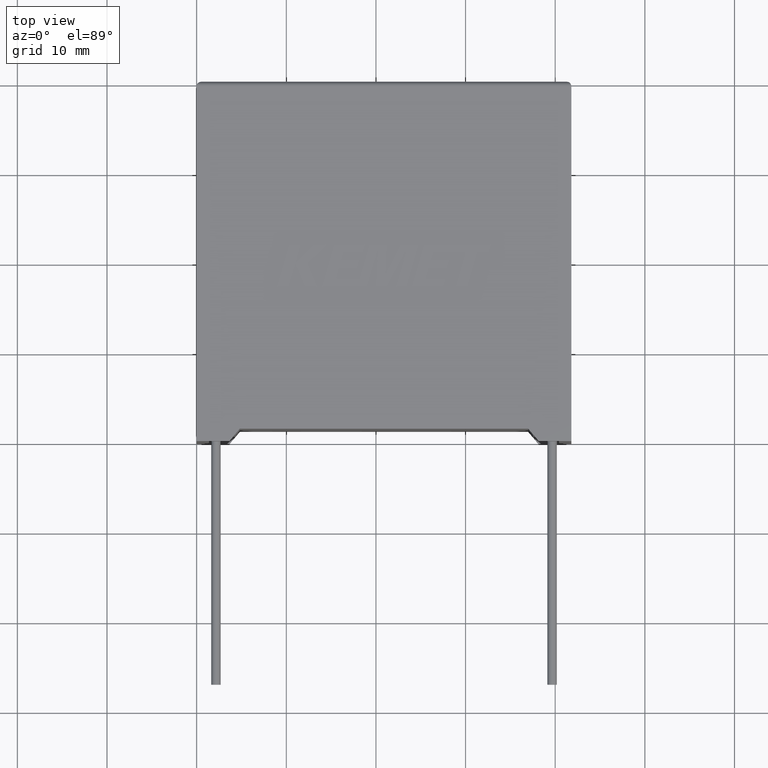
[diagram: clean part render]
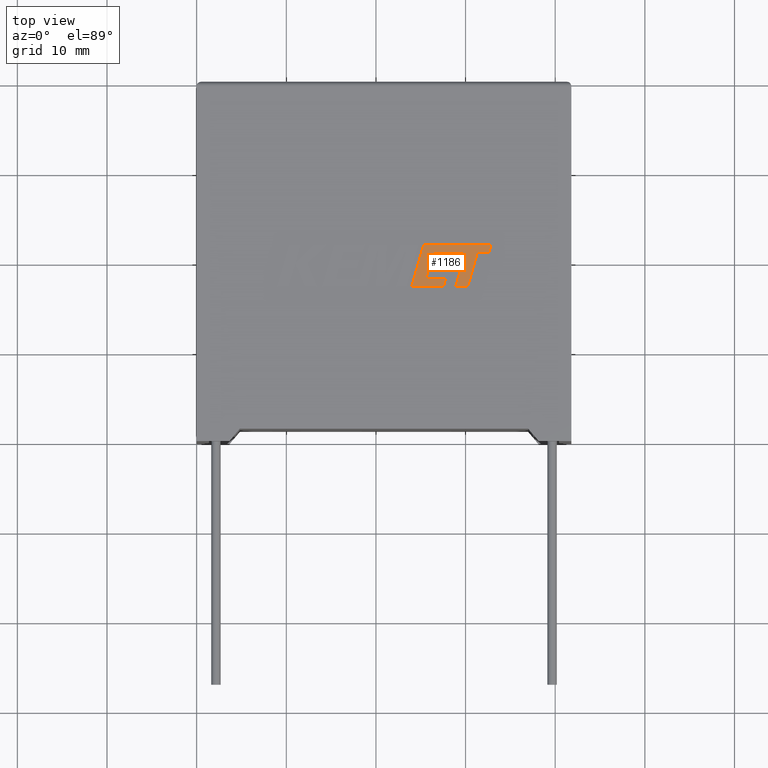
[diagram: same view with one face highlighted and labeled with its STEP entity id]
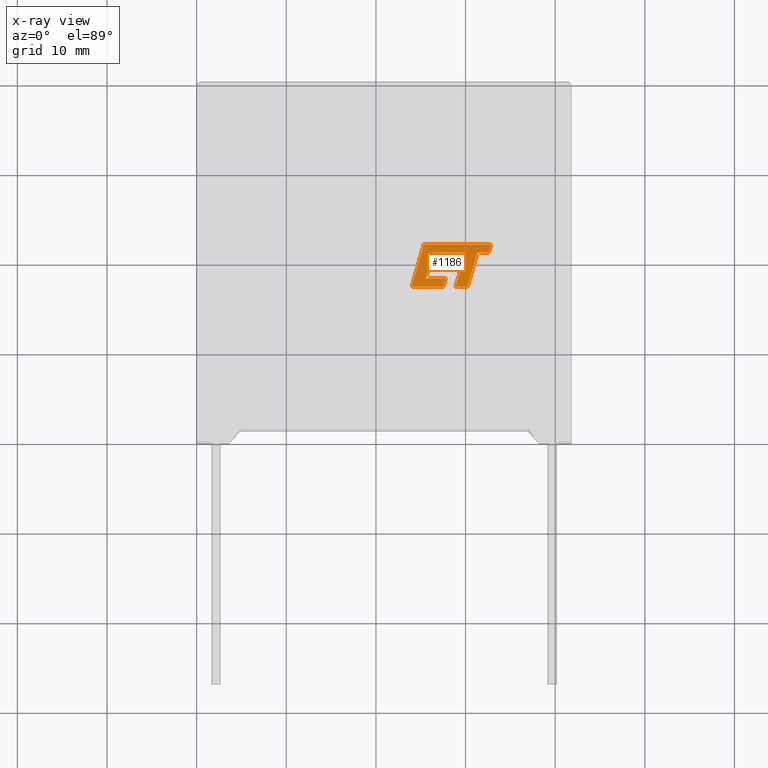
[diagram: x-ray of the same camera — body ghosted, the highlighted face saturated]
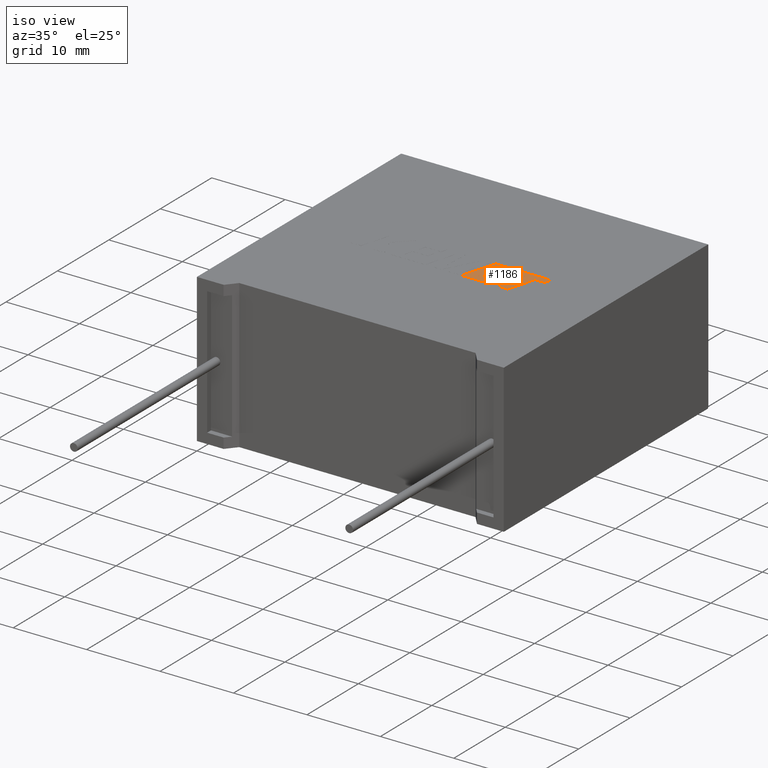
[diagram: same view with one face highlighted and labeled with its STEP entity id]
A machine part, top view. The second image highlights one B-rep face of the part: STEP entity #1186.
The next image is the same camera in x-ray: the body ghosted, the highlighted face saturated — about 0% of this face is hidden behind the body in this view.
A second angle (iso view) of the same face is appended — the face is thin or edge-on in the first view.
In plain terms, the highlighted planar face has unit normal (0, 0, 1).
Its self-contained STEP definition (entity closure, byte-faithful):
#13 = ORIENTED_EDGE ( 'NONE', *, *, #955, .T. ) ;
#33 = LINE ( 'NONE', #586, #2562 ) ;
#76 = DIRECTION ( 'NONE',  ( 0.2729786930694848013, 0.9620200793798827643, 0.000000000000000000 ) ) ;
#98 = LINE ( 'NONE', #1986, #616 ) ;
#99 = LINE ( 'NONE', #2693, #723 ) ;
#100 = CARTESIAN_POINT ( 'NONE',  ( 27.78357728176904118, 18.14594487982692428, 20.20500000000000185 ) ) ;
#101 = DIRECTION ( 'NONE',  ( -1.000000000000000000, 0.000000000000000000, 0.000000000000000000 ) ) ;
#136 = VERTEX_POINT ( 'NONE', #1414 ) ;
#146 = LINE ( 'NONE', #1098, #516 ) ;
#148 = CARTESIAN_POINT ( 'NONE',  ( 27.78357728176904118, 18.14594487982692428, 20.20500000000000185 ) ) ;
#198 = VERTEX_POINT ( 'NONE', #2773 ) ;
#200 = CARTESIAN_POINT ( 'NONE',  ( 26.15874169447065967, 20.17479702603509395, 20.20500000000000185 ) ) ;
#204 = DIRECTION ( 'NONE',  ( 1.000000000000000000, 5.694109626320595965E-16, 0.000000000000000000 ) ) ;
#222 = VECTOR ( 'NONE', #1818, 1000.000000000000114 ) ;
#256 = VERTEX_POINT ( 'NONE', #810 ) ;
#266 = EDGE_CURVE ( 'NONE', #2006, #2748, #33, .T. ) ;
#278 = CARTESIAN_POINT ( 'NONE',  ( 27.92075499712030862, 19.30942145933584797, 20.20500000000000185 ) ) ;
#286 = EDGE_CURVE ( 'NONE', #2748, #1358, #146, .T. ) ;
#292 = CARTESIAN_POINT ( 'NONE',  ( 32.85613472986451455, 21.93698116021452904, 20.20500000000000185 ) ) ;
#296 = LINE ( 'NONE', #1732, #2712 ) ;
#313 = CARTESIAN_POINT ( 'NONE',  ( 23.99342363093656161, 17.25502999999985221, 20.20500000000000185 ) ) ;
#376 = AXIS2_PLACEMENT_3D ( 'NONE', #2122, #1461, #2109 ) ;
#390 = DIRECTION ( 'NONE',  ( -1.000000000000000000, 0.000000000000000000, 0.000000000000000000 ) ) ;
#396 = VERTEX_POINT ( 'NONE', #2010 ) ;
#415 = EDGE_CURVE ( 'NONE', #136, #1100, #2995, .T. ) ;
#454 = CARTESIAN_POINT ( 'NONE',  ( 23.99342363093656161, 17.25502999999985221, 20.20500000000000185 ) ) ;
#516 = VECTOR ( 'NONE', #1803, 1000.000000000000114 ) ;
#519 = VECTOR ( 'NONE', #850, 1000.000000000000227 ) ;
#536 = VECTOR ( 'NONE', #1237, 1000.000000000000227 ) ;
#560 = CARTESIAN_POINT ( 'NONE',  ( 28.16797668711364011, 20.17479702603509395, 20.20500000000000185 ) ) ;
#586 = CARTESIAN_POINT ( 'NONE',  ( 30.22854655330829843, 17.25502999999985576, 20.20500000000000185 ) ) ;
#601 = DIRECTION ( 'NONE',  ( -0.2763173343569615414, -0.9610664548999008350, 0.000000000000000000 ) ) ;
#603 = EDGE_CURVE ( 'NONE', #3026, #661, #2985, .T. ) ;
#616 = VECTOR ( 'NONE', #1477, 1000.000000000000000 ) ;
#648 = EDGE_CURVE ( 'NONE', #396, #1588, #886, .T. ) ;
#654 = DIRECTION ( 'NONE',  ( 0.9999960426590095430, -0.002813301676021314705, 0.000000000000000000 ) ) ;
#661 = VERTEX_POINT ( 'NONE', #1582 ) ;
#723 = VECTOR ( 'NONE', #601, 1000.000000000000000 ) ;
#753 = PLANE ( 'NONE',  #376 ) ;
#810 = CARTESIAN_POINT ( 'NONE',  ( 27.53077509526154643, 17.25502999999985576, 20.20500000000000185 ) ) ;
#850 = DIRECTION ( 'NONE',  ( 0.9999891854650020395, -0.004650693823678666954, 0.000000000000000000 ) ) ;
#851 = LINE ( 'NONE', #2705, #1260 ) ;
#861 = CARTESIAN_POINT ( 'NONE',  ( 25.34011702580303904, 21.93698116021452904, 20.20500000000000185 ) ) ;
#864 = VECTOR ( 'NONE', #654, 1000.000000000000114 ) ;
#886 = LINE ( 'NONE', #200, #222 ) ;
#902 = EDGE_CURVE ( 'NONE', #661, #1544, #98, .T. ) ;
#955 = EDGE_CURVE ( 'NONE', #2818, #3026, #1805, .T. ) ;
#978 = VERTEX_POINT ( 'NONE', #1845 ) ;
#1003 = LINE ( 'NONE', #1405, #536 ) ;
#1098 = CARTESIAN_POINT ( 'NONE',  ( 31.31443714810568224, 21.03298343266931525, 20.20500000000000185 ) ) ;
#1100 = VERTEX_POINT ( 'NONE', #1147 ) ;
#1101 = DIRECTION ( 'NONE',  ( -1.000000000000000000, 0.000000000000000000, 0.000000000000000000 ) ) ;
#1132 = EDGE_CURVE ( 'NONE', #1592, #1620, #851, .T. ) ;
#1134 = VECTOR ( 'NONE', #76, 1000.000000000000114 ) ;
#1147 = CARTESIAN_POINT ( 'NONE',  ( 29.98104014410546725, 21.03298343268095749, 20.20500000000000185 ) ) ;
#1186 = ADVANCED_FACE ( 'NONE', ( #2847 ), #753, .T. ) ;
#1237 = DIRECTION ( 'NONE',  ( 0.2746918797667269874, 0.9615323037684286867, 0.000000000000000000 ) ) ;
#1244 = ORIENTED_EDGE ( 'NONE', *, *, #1392, .T. ) ;
#1256 = EDGE_CURVE ( 'NONE', #1358, #1592, #296, .T. ) ;
#1257 = VECTOR ( 'NONE', #1381, 1000.000000000000000 ) ;
#1260 = VECTOR ( 'NONE', #390, 1000.000000000000000 ) ;
#1268 = DIRECTION ( 'NONE',  ( 0.2745159998572630489, 0.9615825319869153454, 0.000000000000000000 ) ) ;
#1299 = CARTESIAN_POINT ( 'NONE',  ( 30.22854655330829843, 17.25502999999985576, 20.20500000000000185 ) ) ;
#1320 = ORIENTED_EDGE ( 'NONE', *, *, #1256, .T. ) ;
#1337 = EDGE_LOOP ( 'NONE', ( #1745, #1879, #2577, #2697, #1925, #1624, #1320, #3011, #1244, #2056, #2816, #13, #1866, #2058, #1457, #2899, #2595 ) ) ;
#1357 = VECTOR ( 'NONE', #1101, 1000.000000000000000 ) ;
#1358 = VERTEX_POINT ( 'NONE', #1595 ) ;
#1371 = CARTESIAN_POINT ( 'NONE',  ( 26.41214179131961970, 21.04563920156481061, 20.20500000000000185 ) ) ;
#1381 = DIRECTION ( 'NONE',  ( 1.000000000000000000, 0.000000000000000000, 0.000000000000000000 ) ) ;
#1392 = EDGE_CURVE ( 'NONE', #1620, #2075, #1828, .T. ) ;
#1405 = CARTESIAN_POINT ( 'NONE',  ( 27.92075499712030862, 19.30942145933584797, 20.20500000000000185 ) ) ;
#1414 = CARTESIAN_POINT ( 'NONE',  ( 28.55767186976321526, 21.03960315431247352, 20.20500000000000185 ) ) ;
#1447 = CARTESIAN_POINT ( 'NONE',  ( 25.57965129336819743, 18.14594487982692428, 20.20500000000000185 ) ) ;
#1457 = ORIENTED_EDGE ( 'NONE', *, *, #2186, .T. ) ;
#1458 = CARTESIAN_POINT ( 'NONE',  ( 26.41214179131961970, 21.04563920156481061, 20.20500000000000185 ) ) ;
#1461 = DIRECTION ( 'NONE',  ( 0.000000000000000000, 0.000000000000000000, 1.000000000000000000 ) ) ;
#1477 = DIRECTION ( 'NONE',  ( 1.000000000000000000, 1.002616505299178603E-15, 0.000000000000000000 ) ) ;
#1488 = CARTESIAN_POINT ( 'NONE',  ( 27.53077509526154643, 17.25502999999985576, 20.20500000000000185 ) ) ;
#1544 = VERTEX_POINT ( 'NONE', #278 ) ;
#1566 = VECTOR ( 'NONE', #204, 1000.000000000000000 ) ;
#1582 = CARTESIAN_POINT ( 'NONE',  ( 25.91180472368731813, 19.30942145933584797, 20.20500000000000185 ) ) ;
#1588 = VERTEX_POINT ( 'NONE', #1458 ) ;
#1592 = VERTEX_POINT ( 'NONE', #292 ) ;
#1595 = CARTESIAN_POINT ( 'NONE',  ( 32.59631216845044577, 21.03288166657099367, 20.20500000000000185 ) ) ;
#1619 = CARTESIAN_POINT ( 'NONE',  ( 31.31443714810568224, 21.03298343266931525, 20.20500000000000185 ) ) ;
#1620 = VERTEX_POINT ( 'NONE', #1940 ) ;
#1624 = ORIENTED_EDGE ( 'NONE', *, *, #286, .T. ) ;
#1732 = CARTESIAN_POINT ( 'NONE',  ( 32.59631216845044577, 21.03288166657099367, 20.20500000000000185 ) ) ;
#1745 = ORIENTED_EDGE ( 'NONE', *, *, #2124, .T. ) ;
#1790 = VECTOR ( 'NONE', #1268, 1000.000000000000114 ) ;
#1803 = DIRECTION ( 'NONE',  ( 0.9999999968487351953, -7.938847109813994231E-05, 0.000000000000000000 ) ) ;
#1805 = LINE ( 'NONE', #148, #1357 ) ;
#1818 = DIRECTION ( 'NONE',  ( 0.2793947940814923703, 0.9601763114346033579, 0.000000000000000000 ) ) ;
#1828 = LINE ( 'NONE', #861, #2822 ) ;
#1830 = EDGE_CURVE ( 'NONE', #978, #2006, #2851, .T. ) ;
#1842 = DIRECTION ( 'NONE',  ( -0.2764273280489764617, -0.9610348236706636182, 0.000000000000000000 ) ) ;
#1845 = CARTESIAN_POINT ( 'NONE',  ( 28.89483635817486373, 17.25502999999985576, 20.20500000000000185 ) ) ;
#1866 = ORIENTED_EDGE ( 'NONE', *, *, #603, .T. ) ;
#1879 = ORIENTED_EDGE ( 'NONE', *, *, #415, .T. ) ;
#1906 = CARTESIAN_POINT ( 'NONE',  ( 28.89483635817486373, 17.25502999999985576, 20.20500000000000185 ) ) ;
#1925 = ORIENTED_EDGE ( 'NONE', *, *, #266, .T. ) ;
#1927 = DIRECTION ( 'NONE',  ( 0.2762033010290175228, 0.9610992334304890861, 0.000000000000000000 ) ) ;
#1940 = CARTESIAN_POINT ( 'NONE',  ( 25.34011702580303904, 21.93698116021452904, 20.20500000000000185 ) ) ;
#1956 = CARTESIAN_POINT ( 'NONE',  ( 28.55767186976321526, 21.03960315431247352, 20.20500000000000185 ) ) ;
#1986 = CARTESIAN_POINT ( 'NONE',  ( 25.91180472368731813, 19.30942145933584797, 20.20500000000000185 ) ) ;
#2006 = VERTEX_POINT ( 'NONE', #1299 ) ;
#2010 = CARTESIAN_POINT ( 'NONE',  ( 26.15874169447065967, 20.17479702603509395, 20.20500000000000185 ) ) ;
#2055 = EDGE_CURVE ( 'NONE', #1100, #978, #99, .T. ) ;
#2056 = ORIENTED_EDGE ( 'NONE', *, *, #2356, .T. ) ;
#2058 = ORIENTED_EDGE ( 'NONE', *, *, #902, .T. ) ;
#2075 = VERTEX_POINT ( 'NONE', #313 ) ;
#2109 = DIRECTION ( 'NONE',  ( 1.000000000000000000, 0.000000000000000000, 0.000000000000000000 ) ) ;
#2122 = CARTESIAN_POINT ( 'NONE',  ( -0.5081854015330893315, 2.101076137004668443, 20.20499999999999474 ) ) ;
#2124 = EDGE_CURVE ( 'NONE', #1588, #136, #2309, .T. ) ;
#2186 = EDGE_CURVE ( 'NONE', #1544, #198, #1003, .T. ) ;
#2188 = LINE ( 'NONE', #1488, #1134 ) ;
#2199 = CARTESIAN_POINT ( 'NONE',  ( 25.57965129336819743, 18.14594487982692428, 20.20500000000000185 ) ) ;
#2222 = EDGE_CURVE ( 'NONE', #256, #2818, #2188, .T. ) ;
#2296 = LINE ( 'NONE', #454, #1566 ) ;
#2309 = LINE ( 'NONE', #1371, #864 ) ;
#2356 = EDGE_CURVE ( 'NONE', #2075, #256, #2296, .T. ) ;
#2451 = EDGE_CURVE ( 'NONE', #198, #396, #2684, .T. ) ;
#2562 = VECTOR ( 'NONE', #2946, 1000.000000000000114 ) ;
#2577 = ORIENTED_EDGE ( 'NONE', *, *, #2055, .T. ) ;
#2595 = ORIENTED_EDGE ( 'NONE', *, *, #648, .T. ) ;
#2684 = LINE ( 'NONE', #560, #2989 ) ;
#2693 = CARTESIAN_POINT ( 'NONE',  ( 29.98104014410546725, 21.03298343268095749, 20.20500000000000185 ) ) ;
#2697 = ORIENTED_EDGE ( 'NONE', *, *, #1830, .T. ) ;
#2705 = CARTESIAN_POINT ( 'NONE',  ( 32.85613472986451455, 21.93698116021452904, 20.20500000000000185 ) ) ;
#2712 = VECTOR ( 'NONE', #1927, 1000.000000000000227 ) ;
#2748 = VERTEX_POINT ( 'NONE', #1619 ) ;
#2773 = CARTESIAN_POINT ( 'NONE',  ( 28.16797668711364011, 20.17479702603509395, 20.20500000000000185 ) ) ;
#2816 = ORIENTED_EDGE ( 'NONE', *, *, #2222, .T. ) ;
#2818 = VERTEX_POINT ( 'NONE', #100 ) ;
#2822 = VECTOR ( 'NONE', #1842, 1000.000000000000000 ) ;
#2847 = FACE_OUTER_BOUND ( 'NONE', #1337, .T. ) ;
#2851 = LINE ( 'NONE', #1906, #1257 ) ;
#2899 = ORIENTED_EDGE ( 'NONE', *, *, #2451, .T. ) ;
#2946 = DIRECTION ( 'NONE',  ( 0.2762437428917223214, 0.9610876102172850599, 0.000000000000000000 ) ) ;
#2985 = LINE ( 'NONE', #2199, #1790 ) ;
#2989 = VECTOR ( 'NONE', #101, 1000.000000000000000 ) ;
#2995 = LINE ( 'NONE', #1956, #519 ) ;
#3011 = ORIENTED_EDGE ( 'NONE', *, *, #1132, .T. ) ;
#3026 = VERTEX_POINT ( 'NONE', #1447 ) ;